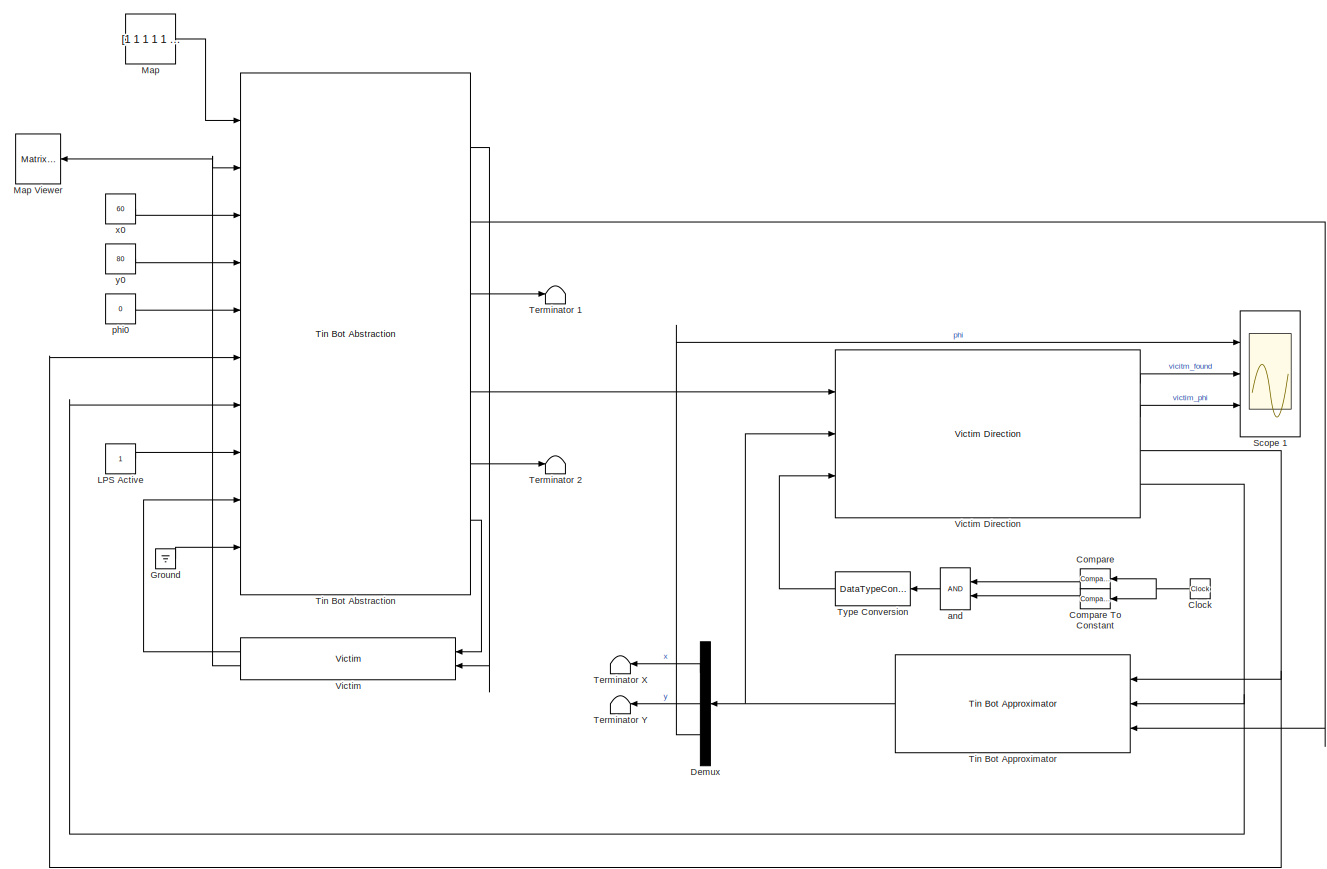
[diagram: root canvas - part 1/1, most of the canvas]
MODEL slx_67b0b91922a4
KIND model
CONFIG AbsTol = auto
CONFIG FixedStep = 0.01
CONFIG MaxStep = auto
CONFIG MinStep = auto
CONFIG RelTol = 1e-3
CONFIG SampleTimeConstraint = Unconstrained
CONFIG Solver = FixedStepAuto
CONFIG SolverMode = Auto
CONFIG SolverName = FixedStepAuto
CONFIG StartTime = 0.0
CONFIG StopTime = 20
BLOCK [Clock] Clock
BLOCK [Reference] Compare  REF=simulink/Logic and Bit
Operations/Compare
To Constant
  Ports = [1, 1]
  SourceBlock = simulink/Logic and Bit\nOperations/Compare\nTo Constant
  SourceType = Compare To Constant
BLOCK [Reference] Compare To Constant  REF=simulink/Logic and Bit
Operations/Compare
To Constant
  Ports = [1, 1]
  SourceBlock = simulink/Logic and Bit\nOperations/Compare\nTo Constant
  SourceType = Compare To Constant
BLOCK [Demux] Demux
  DisplayOption = bar
  Outputs = 3
  Ports = [1, 3]
BLOCK [Ground] Ground
BLOCK [Constant] LPS Active
BLOCK [Constant] Map
  Value = [1 1 1 1 1 1 1 1 1 1 1 1 1 1 1 1 1 1 1 1 1 1 1 1 1 1 1 1 1 1 1 1 1 1 1 1 1 1 1 1 1 1 1 1 1 1 1 1 1 1 1 1 1 1 1 1 1 1 1 1 1 1 1 1 1 1 1 1 1 1 1 1 1 1 1 1 1 1 1 1 1 1 1 1 1 1 1 1 1 1 1 1 1 1 1 1 1 1 1 1 1 1 1 1 1 1 1 1 1 1 1 1 1 1 1 1 1 1 1 1 1 1 1 1 1 1 1 1 1 1 1 1 1 1 1 1 1 1 1 1 1 1 1 1 1 1 1 1 1 1 1 1 1 1 1 1 1 1 1 1 1 1 1 1 1 1 1 1 1 1 1 1 1 1 1 1 1 1 1 1 1 1 1 1 1 1 1 1 1 1 1 1 1 1 1 1 1 1 1 1...<+79601ch>
BLOCK [Reference] Map Viewer  REF=dspsnks4/Matrix
Viewer
  Ports = [1]
  SourceBlock = dspsnks4/Matrix\nViewer
  SourceType = Matrix Viewer
BLOCK [Scope] Scope 1
  NumInputPorts = 3
  Ports = [3]
  ScopeSpecificationString = Simulink.scopes.TimeScopeBlockCfg('CurrentConfiguration', extmgr.ConfigurationSet(extmgr.Configuration('Core','General UI',true),extmgr.Configuration('Core','Source UI',true),extmgr.Configuration('Sources','WiredSimulink',true),extmgr.Configuration('Visuals','Time Domain',true,'SerializedDisplays',{struct('MinYLimReal','-0.78538','MaxYLimReal','7.0684','YLabelReal','','MinYLimMag','0.00000','MaxYL...<+2984ch>
BLOCK [Terminator] Terminator 1
BLOCK [Terminator] Terminator 2
BLOCK [Terminator] Terminator X
BLOCK [Terminator] Terminator Y
BLOCK [Reference] Tin Bot Abstraction  REF=tinbot/Tin Bot Abstraction  (lib defined in slx_3c5c153e9850, slx_5b2796442827, +1 more)
  Ports = [10, 6]
  SourceBlock = tinbot/Tin Bot Abstraction
BLOCK [Reference] Tin Bot Approximator  REF=tinbot/Tin Bot Approximator  (lib defined in slx_3c5c153e9850, slx_5b2796442827, +1 more)
  Ports = [3, 1]
  SourceBlock = tinbot/Tin Bot Approximator
BLOCK [DataTypeConversion] Type Conversion
  OutDataTypeStr = double
  RndMeth = Floor
  SaturateOnIntegerOverflow = off
BLOCK [Reference] Victim  REF=tinbot/Victim  (lib defined in slx_3c5c153e9850, slx_5b2796442827, +1 more)
  Ports = [2, 2]
  SourceBlock = tinbot/Victim
BLOCK [Reference] Victim Direction  REF=tinbot/Victim Direction  (lib defined in slx_3c5c153e9850, slx_5b2796442827, +1 more)
  Ports = [3, 4]
  SourceBlock = tinbot/Victim Direction
BLOCK [Logic] and
  AllPortsSameDT = off
  OutDataTypeStr = boolean
  Ports = [2, 1]
BLOCK [Constant] phi0
  Value = 0
BLOCK [Constant] x0
  Value = 60
BLOCK [Constant] y0
  Value = 80
NET Clock:1 -> Compare To Constant:1, Compare:1
LINE Compare To Constant:1 -> and:2
LINE Compare:1 -> and:1
LINE Demux:1 -> Terminator X:1
LINE Demux:2 -> Terminator Y:1
LINE Demux:3 -> Scope 1:1
LINE Ground:1 -> Tin Bot Abstraction:10
LINE LPS Active:1 -> Tin Bot Abstraction:8
LINE Map:1 -> Tin Bot Abstraction:1
LINE Tin Bot Abstraction:1 -> Victim:2
LINE Tin Bot Abstraction:2 -> Tin Bot Approximator:3
LINE Tin Bot Abstraction:3 -> Terminator 1:1
LINE Tin Bot Abstraction:4 -> Victim Direction:1
LINE Tin Bot Abstraction:5 -> Terminator 2:1
LINE Tin Bot Abstraction:6 -> Victim:1
NET Tin Bot Approximator:1 -> Demux:1, Victim Direction:2
LINE Type Conversion:1 -> Victim Direction:3
LINE Victim Direction:1 -> Scope 1:2
LINE Victim Direction:2 -> Scope 1:3
NET Victim Direction:3 -> Tin Bot Abstraction:6, Tin Bot Approximator:1
NET Victim Direction:4 -> Tin Bot Abstraction:7, Tin Bot Approximator:2
LINE Victim:1 -> Tin Bot Abstraction:9
NET Victim:2 -> Map Viewer:1, Tin Bot Abstraction:2
LINE and:1 -> Type Conversion:1
LINE phi0:1 -> Tin Bot Abstraction:5
LINE x0:1 -> Tin Bot Abstraction:3
LINE y0:1 -> Tin Bot Abstraction:4
note: NET lines group one-source signal fan-out (src -> all destinations, sorted); 1:1 wires keep LINE
